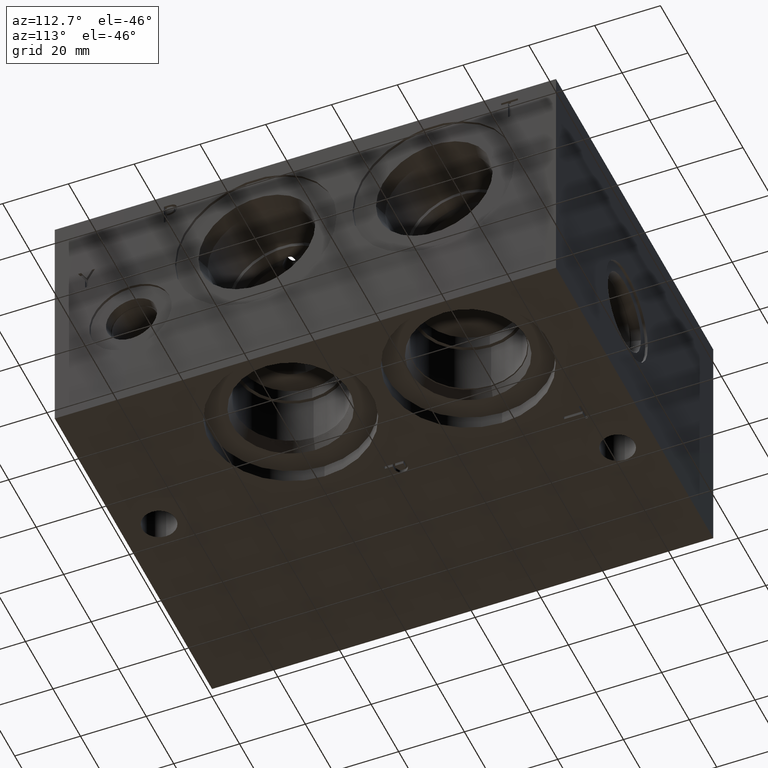
[diagram: clean part render]
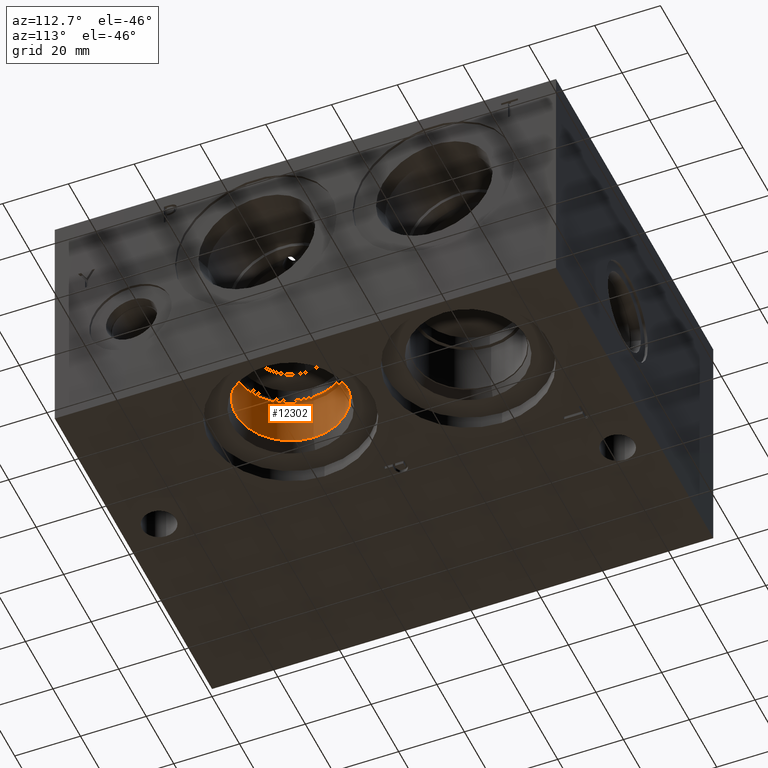
[diagram: same view with one face highlighted and labeled with its STEP entity id]
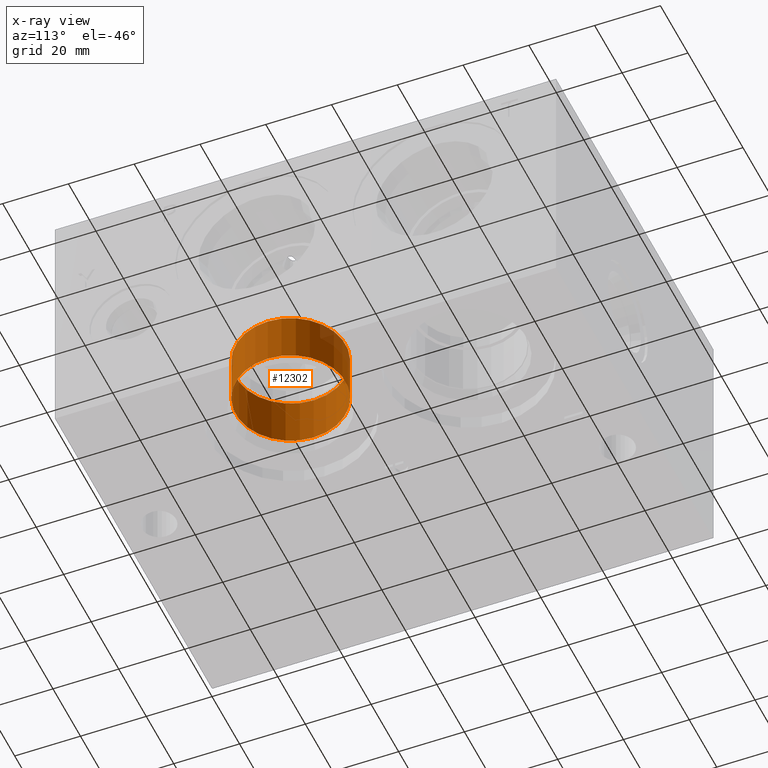
[diagram: x-ray of the same camera — body ghosted, the highlighted face saturated]
A machine part, auxiliary view. The second image highlights one B-rep face of the part: STEP entity #12302.
The next image is the same camera in x-ray: the body ghosted, the highlighted face saturated — about 6% of this face is hidden behind the body in this view.
In plain terms, the highlighted cylindrical surface (bore or boss wall) has radius 16.6751 mm, axis along (0, 0, -1).
Its self-contained STEP definition (entity closure, byte-faithful):
#17=CYLINDRICAL_SURFACE('',#12820,16.6751);
#169=CIRCLE('',#12817,16.6751);
#170=CIRCLE('',#12818,16.6751);
#172=CIRCLE('',#12821,16.6751);
#1345=FACE_OUTER_BOUND('',#2040,.T.);
#2040=EDGE_LOOP('',(#10354,#10355,#10356,#10357,#10358));
#3235=LINE('',#20645,#4352);
#4352=VECTOR('',#14911,16.6751);
#5715=VERTEX_POINT('',#20636);
#5716=VERTEX_POINT('',#20637);
#5718=VERTEX_POINT('',#20643);
#7333=EDGE_CURVE('',#5715,#5716,#169,.T.);
#7334=EDGE_CURVE('',#5716,#5715,#170,.T.);
#7336=EDGE_CURVE('',#5718,#5718,#172,.T.);
#7337=EDGE_CURVE('',#5718,#5716,#3235,.T.);
#10354=ORIENTED_EDGE('',*,*,#7336,.F.);
#10355=ORIENTED_EDGE('',*,*,#7337,.T.);
#10356=ORIENTED_EDGE('',*,*,#7333,.F.);
#10357=ORIENTED_EDGE('',*,*,#7334,.F.);
#10358=ORIENTED_EDGE('',*,*,#7337,.F.);
#12302=ADVANCED_FACE('',(#1345),#17,.F.);
#12817=AXIS2_PLACEMENT_3D('',#20638,#14901,#14902);
#12818=AXIS2_PLACEMENT_3D('',#20639,#14903,#14904);
#12820=AXIS2_PLACEMENT_3D('',#20642,#14907,#14908);
#12821=AXIS2_PLACEMENT_3D('',#20644,#14909,#14910);
#14901=DIRECTION('center_axis',(0.,0.,-1.));
#14902=DIRECTION('ref_axis',(1.,0.,0.));
#14903=DIRECTION('center_axis',(0.,0.,-1.));
#14904=DIRECTION('ref_axis',(1.,0.,0.));
#14907=DIRECTION('center_axis',(0.,0.,-1.));
#14908=DIRECTION('ref_axis',(1.,0.,0.));
#14909=DIRECTION('center_axis',(0.,0.,1.));
#14910=DIRECTION('ref_axis',(1.,0.,0.));
#14911=DIRECTION('',(0.,0.,1.));
#20636=CARTESIAN_POINT('',(105.5751,61.1124,23.114));
#20637=CARTESIAN_POINT('',(72.2249,61.1124,23.114));
#20638=CARTESIAN_POINT('Origin',(88.9,61.1124,23.114));
#20639=CARTESIAN_POINT('Origin',(88.9,61.1124,23.114));
#20642=CARTESIAN_POINT('Origin',(88.9,61.1124,11.557));
#20643=CARTESIAN_POINT('',(72.2249,61.1124,8.1002788467706));
#20644=CARTESIAN_POINT('Origin',(88.9,61.1124,8.1002788467706));
#20645=CARTESIAN_POINT('',(72.2249,61.1124,11.557));